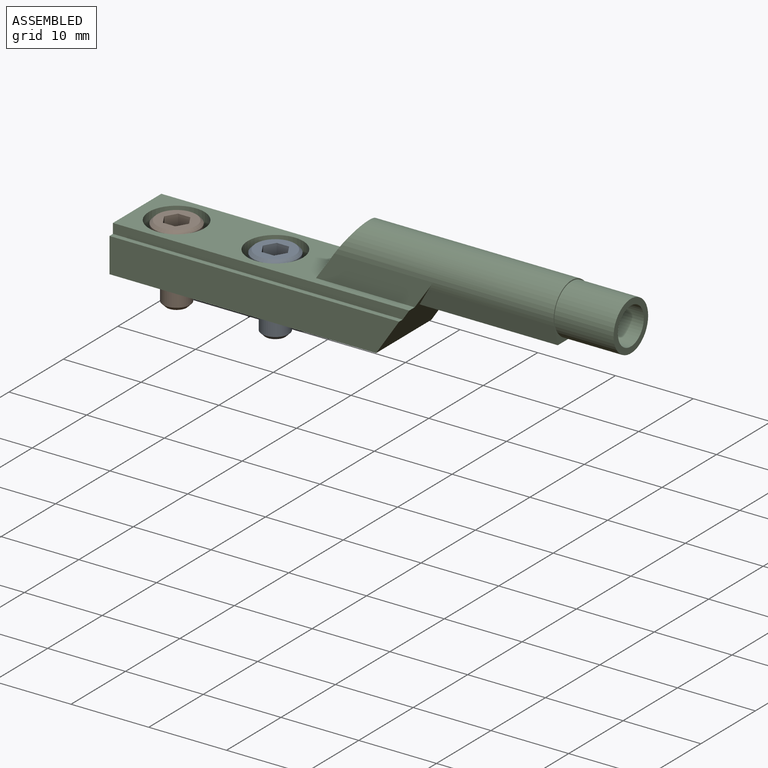
[diagram: assembled view]
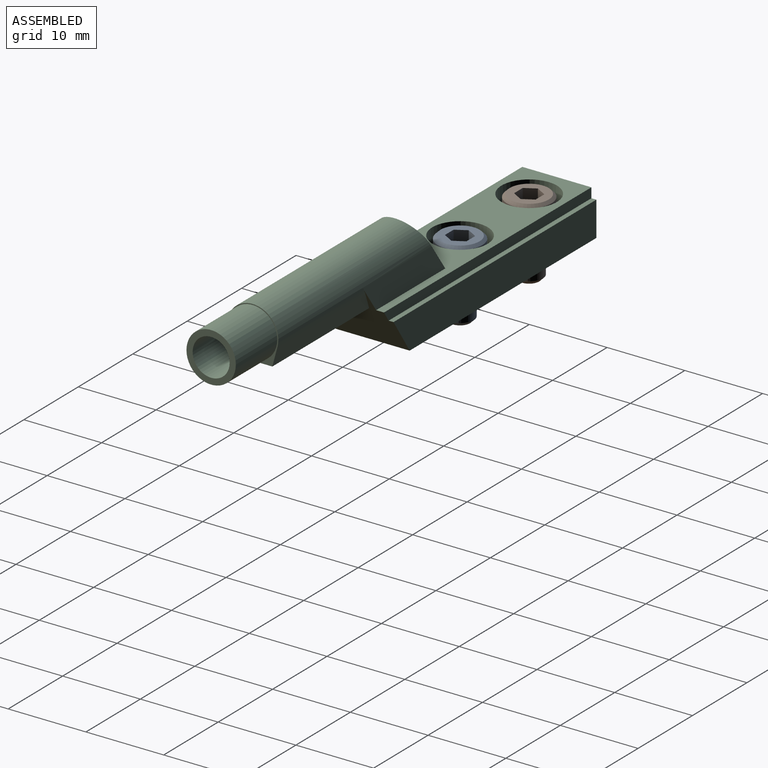
[diagram: assembled view, second angle]
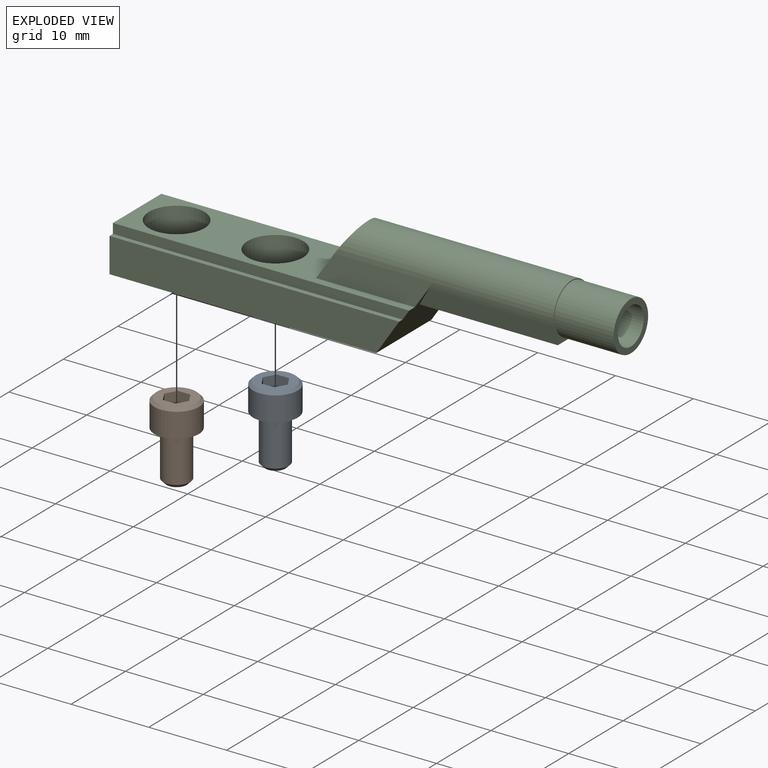
[diagram: exploded view]
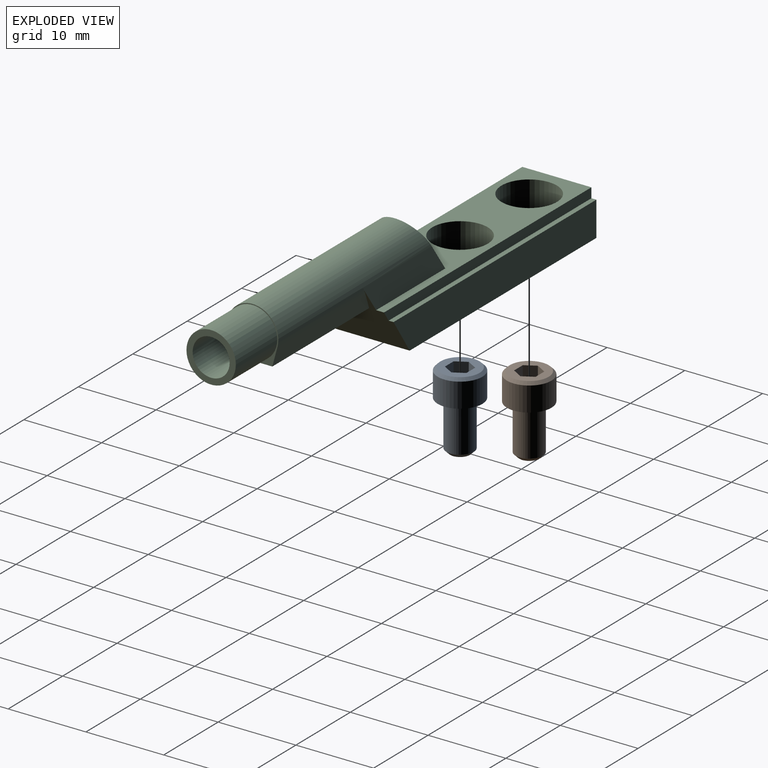
[diagram: exploded view, second angle]
ASSEMBLY  parts=3 mates=2
PART A: 21 faces, bbox 5.7x5.7x9.9 mm
  f0: plane 5.03x5.03mm, normal (0,0,1), area 13.2mm2, adj f1,f8,f9,f10,f11,f12,f13
  f1: cone r=2.51mm half-angle=45deg, axis (0,0,-1), area 8.5mm2, adj f0,f2
  f2: cylinder r=2.87mm len=5.74mm, axis (0,0,1), area 56.8mm2, adj f1,f3
  f3: plane 5.74x5.74mm, normal (0,0,-1), area 13.2mm2, adj f2,f7
  f4: cylinder r=1.75mm len=5.62mm, axis (0,0,1), area 61.9mm2, adj f5,f7
  f5: cone r=1.28mm half-angle=45deg, axis (0,0,1), area 6.4mm2, adj f4,f6
  f6: plane 2.56x2.56mm, normal (0,0,-1), area 5.1mm2, adj f5
  f7: torus R=2.01mm, axis (0,0,-1), area 4.6mm2, adj f3,f4
  f8: plane 1.63x1.38mm, normal (-0.87,0.5,0), area 2.6mm2, adj f0,f9,f13,f17,f18
  f9: plane 1.63x1.6mm, normal (0,1,0), area 2.6mm2, adj f0,f8,f10,f16,f17
  f10: plane 1.63x1.38mm, normal (0.87,0.5,0), area 2.6mm2, adj f0,f9,f11,f15,f16
  f11: plane 1.63x1.38mm, normal (0.87,-0.5,0), area 2.6mm2, adj f0,f10,f12,f14,f15
  f12: plane 1.63x1.6mm, normal (0,-1,0), area 2.6mm2, adj f0,f11,f13,f14,f19
  f13: plane 1.63x1.38mm, normal (-0.87,-0.5,0), area 2.6mm2, adj f0,f8,f12,f18,f19
  f14: plane 1.2x0.69mm, normal (0,0,1), area 0.1mm2, adj f11,f12,f20
  f15: plane 1.38x0.4mm, normal (0,0,1), area 0.1mm2, adj f10,f11,f20
  f16: plane 1.2x0.69mm, normal (0,0,1), area 0.1mm2, adj f9,f10,f20
  f17: plane 1.2x0.69mm, normal (0,0,1), area 0.1mm2, adj f8,f9,f20
  f18: plane 1.38x0.4mm, normal (0,0,1), area 0.1mm2, adj f8,f13,f20
  f19: plane 1.2x0.69mm, normal (0,0,1), area 0.1mm2, adj f12,f13,f20
  f20: cone r=1.38mm half-angle=60deg, axis (0,0,1), area 7mm2, adj f14,f15,f16,f17,f18,f19
PART B: 21 faces, bbox 5.7x5.7x9.9 mm
  f0: plane 5.03x5.03mm, normal (0,0,1), area 13.2mm2, adj f1,f8,f9,f10,f11,f12,f13
  f1: cone r=2.51mm half-angle=45deg, axis (0,0,-1), area 8.5mm2, adj f0,f2
  f2: cylinder r=2.87mm len=5.74mm, axis (0,0,1), area 56.8mm2, adj f1,f3
  f3: plane 5.74x5.74mm, normal (0,0,-1), area 13.2mm2, adj f2,f7
  f4: cylinder r=1.75mm len=5.62mm, axis (0,0,1), area 61.9mm2, adj f5,f7
  f5: cone r=1.28mm half-angle=45deg, axis (0,0,1), area 6.4mm2, adj f4,f6
  f6: plane 2.56x2.56mm, normal (0,0,-1), area 5.1mm2, adj f5
  f7: torus R=2.01mm, axis (0,0,-1), area 4.6mm2, adj f3,f4
  f8: plane 1.63x1.38mm, normal (-0.87,0.5,0), area 2.6mm2, adj f0,f9,f13,f17,f18
  f9: plane 1.63x1.6mm, normal (0,1,0), area 2.6mm2, adj f0,f8,f10,f16,f17
  f10: plane 1.63x1.38mm, normal (0.87,0.5,0), area 2.6mm2, adj f0,f9,f11,f15,f16
  f11: plane 1.63x1.38mm, normal (0.87,-0.5,0), area 2.6mm2, adj f0,f10,f12,f14,f15
  f12: plane 1.63x1.6mm, normal (0,-1,0), area 2.6mm2, adj f0,f11,f13,f14,f19
  f13: plane 1.63x1.38mm, normal (-0.87,-0.5,0), area 2.6mm2, adj f0,f8,f12,f18,f19
  f14: plane 1.2x0.69mm, normal (0,0,1), area 0.1mm2, adj f11,f12,f20
  f15: plane 1.38x0.4mm, normal (0,0,1), area 0.1mm2, adj f10,f11,f20
  f16: plane 1.2x0.69mm, normal (0,0,1), area 0.1mm2, adj f9,f10,f20
  f17: plane 1.2x0.69mm, normal (0,0,1), area 0.1mm2, adj f8,f9,f20
  f18: plane 1.38x0.4mm, normal (0,0,1), area 0.1mm2, adj f8,f13,f20
  f19: plane 1.2x0.69mm, normal (0,0,1), area 0.1mm2, adj f12,f13,f20
  f20: cone r=1.38mm half-angle=60deg, axis (0,0,1), area 7mm2, adj f14,f15,f16,f17,f18,f19
PART C: 28 faces, bbox 63.5x10.2x12.3 mm
  f0: plane 14.98x3.43mm, normal (0,1,0.04), area 43.5mm2, adj f1,f11,f13,f21
  f1: cylinder r=3.3mm len=28.2mm, axis (-1,0,0), area 303.1mm2, adj f0,f2,f3,f13,f14,f16,f21
  f2: plane 14.98x3.43mm, normal (0,-1,0.04), area 43.5mm2, adj f1,f11,f13,f21
  f3: plane 6.6x6.6mm, normal (1,0,0), area 5mm2, adj f1,f14,f15,f16,f17
  f4: plane 37.25x4.45mm, normal (0,-1,0), area 159mm2, adj f5,f7,f12,f13
  f5: plane 34.29x10.16mm, normal (0,0,-1), area 325.7mm2, adj f4,f6,f12,f13,f22,f25
  f6: plane 37.25x4.45mm, normal (0,1,0), area 159mm2, adj f5,f10,f12,f13
  f7: plane 37.25x0.64mm, normal (0,0,1), area 23.7mm2, adj f4,f8,f12,f13
  f8: plane 38.1x1.27mm, normal (0,-1,0), area 47.8mm2, adj f7,f11,f12,f13
  f9: plane 38.1x1.27mm, normal (0,1,0), area 47.8mm2, adj f10,f11,f12,f13
  f10: plane 37.25x0.64mm, normal (0,0,1), area 23.7mm2, adj f6,f9,f12,f13
  f11: plane 38.1x8.89mm, normal (0,0,1), area 171.4mm2, adj f0,f2,f8,f9,f12,f13,f21,f24
  f12: plane 10.16x5.72mm, normal (-1,0,0), area 56.5mm2, adj f4,f5,f6,f7,f8,f9,f10,f11
  f13: plane 10.17x9.15mm, normal (0.83,0,-0.55), area 71mm2, adj f0,f1,f2,f4,f5,f6,f7,f8
  f14: plane 17.78x2.45mm, normal (0,-0.97,-0.26), area 43mm2, adj f1,f3,f13,f15
  f15: plane 17.78x5.07mm, normal (0,0,-1), area 90.1mm2, adj f3,f13,f14,f16
  f16: plane 17.78x2.45mm, normal (0,0.97,-0.26), area 43mm2, adj f1,f3,f13,f15
  f17: cylinder r=3.17mm len=7.62mm, axis (-1,0,0), area 152mm2, adj f3,f18
  f18: plane 6.35x6.35mm, normal (1,0,0), area 13.9mm2, adj f17,f19
  f19: cylinder r=2.38mm len=22.23mm, axis (1,0,0), area 332.5mm2, adj f18,f20
  f20: plane 4.76x4.76mm, normal (1,0,0), area 17.8mm2, adj f19
  f21: plane 6.86x6.6mm, normal (-0.83,0,0.55), area 47.3mm2, adj f0,f1,f2,f11
  f22: cylinder r=1.9mm len=3.8mm, axis (0,0,1), area 26.4mm2, adj f5,f23
  f23: plane 7.15x7.15mm, normal (0,0,1), area 28.8mm2, adj f22,f24
  f24: cylinder r=3.57mm len=7.15mm, axis (0,0,1), area 78.7mm2, adj f11,f23
  f25: cylinder r=1.9mm len=3.8mm, axis (0,0,1), area 26.4mm2, adj f5,f26
  f26: plane 7.15x7.15mm, normal (0,0,1), area 28.8mm2, adj f25,f27
  f27: cylinder r=3.57mm len=7.15mm, axis (0,0,1), area 78.7mm2, adj f11,f26
PLACE A at identity
PLACE B at identity
PLACE C at identity fixed
MATE fastened C.f22 <-> A.f5  axis (0,0,1) through (-468.72,0,12.37)mm
MATE fastened C.f25 <-> B.f5  axis (0,0,1) through (-481.42,0,12.37)mm
